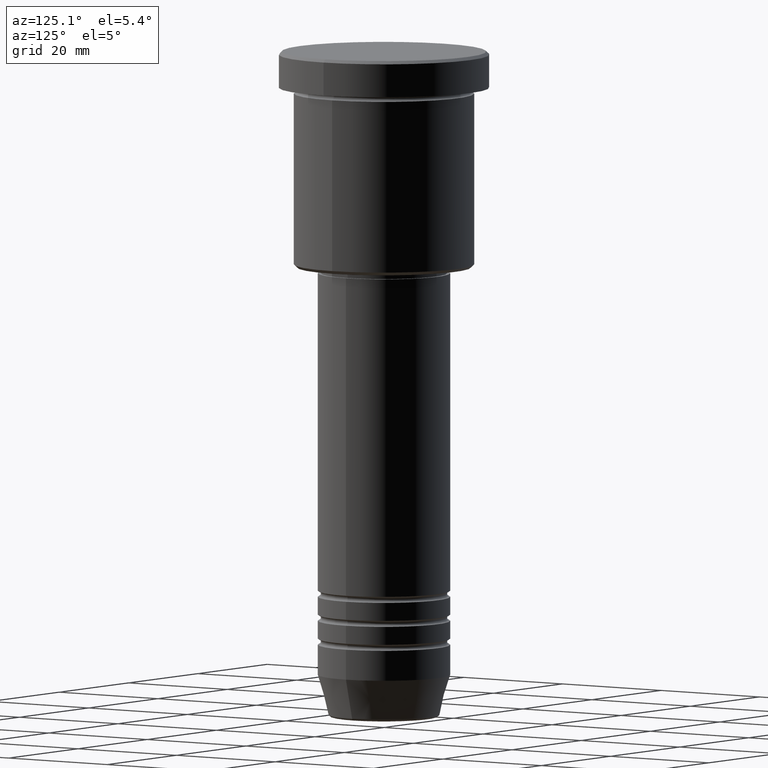
[diagram: clean part render]
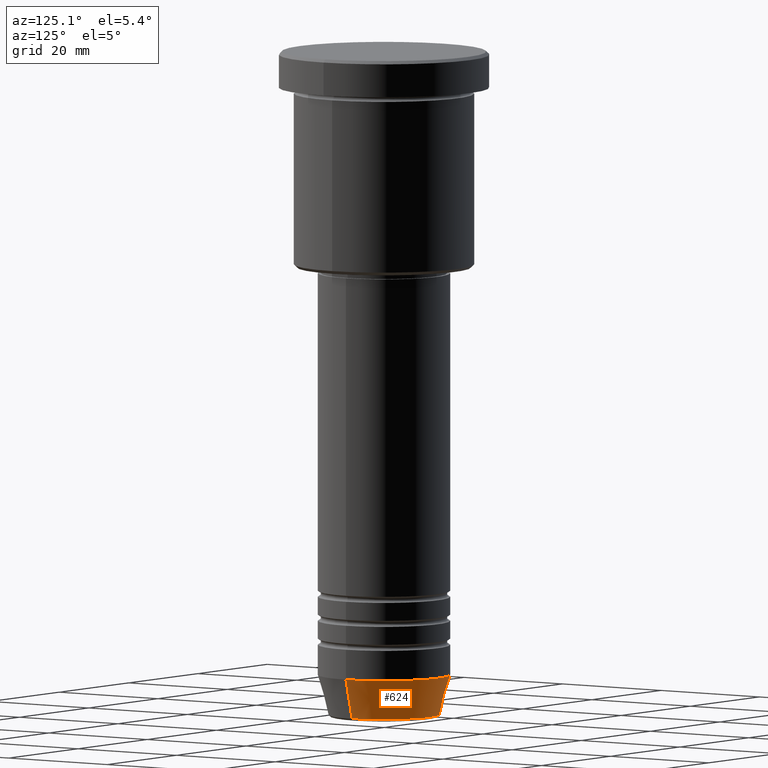
[diagram: same view with one face highlighted and labeled with its STEP entity id]
A machine part, auxiliary view. The second image highlights one B-rep face of the part: STEP entity #624.
In plain terms, the highlighted conical surface has half-angle 15 deg.
Its self-contained STEP definition (entity closure, byte-faithful):
#1 = VERTEX_POINT ( 'NONE', #257 ) ;
#43 = EDGE_CURVE ( 'NONE', #936, #205, #72, .T. ) ;
#72 = LINE ( 'NONE', #642, #761 ) ;
#77 = CARTESIAN_POINT ( 'NONE',  ( 11.00000000000000000, 0.000000000000000000, -104.0000000000000000 ) ) ;
#84 = ORIENTED_EDGE ( 'NONE', *, *, #795, .T. ) ;
#95 = DIRECTION ( 'NONE',  ( 1.000000000000000000, 0.000000000000000000, 0.000000000000000000 ) ) ;
#103 = VECTOR ( 'NONE', #452, 1000.000000000000000 ) ;
#168 = LINE ( 'NONE', #1158, #103 ) ;
#186 = AXIS2_PLACEMENT_3D ( 'NONE', #625, #539, #715 ) ;
#205 = VERTEX_POINT ( 'NONE', #578 ) ;
#257 = CARTESIAN_POINT ( 'NONE',  ( 9.223655072137194821, 0.000000000000000000, -110.6294095225512422 ) ) ;
#314 = CARTESIAN_POINT ( 'NONE',  ( 0.000000000000000000, 0.000000000000000000, -104.0000000000000000 ) ) ;
#338 = EDGE_CURVE ( 'NONE', #1, #384, #168, .T. ) ;
#344 = AXIS2_PLACEMENT_3D ( 'NONE', #314, #595, #933 ) ;
#384 = VERTEX_POINT ( 'NONE', #77 ) ;
#416 = CIRCLE ( 'NONE', #344, 11.00000000000000000 ) ;
#452 = DIRECTION ( 'NONE',  ( 0.2588190451025213501, 0.000000000000000000, 0.9659258262890680902 ) ) ;
#539 = DIRECTION ( 'NONE',  ( -0.000000000000000000, -0.000000000000000000, 1.000000000000000000 ) ) ;
#553 = FACE_OUTER_BOUND ( 'NONE', #797, .T. ) ;
#578 = CARTESIAN_POINT ( 'NONE',  ( -11.00000000000000000, 1.347111479062088405E-15, -104.0000000000000000 ) ) ;
#595 = DIRECTION ( 'NONE',  ( -0.000000000000000000, -0.000000000000000000, 1.000000000000000000 ) ) ;
#624 = ADVANCED_FACE ( 'NONE', ( #553 ), #706, .T. ) ;
#625 = CARTESIAN_POINT ( 'NONE',  ( 0.000000000000000000, 0.000000000000000000, -110.6294095225512422 ) ) ;
#637 = CARTESIAN_POINT ( 'NONE',  ( -9.223655072137194821, 1.238341722557647399E-15, -110.6294095225512422 ) ) ;
#642 = CARTESIAN_POINT ( 'NONE',  ( -11.00000000000000000, 1.347111479062088405E-15, -104.0000000000000000 ) ) ;
#663 = EDGE_CURVE ( 'NONE', #384, #205, #416, .T. ) ;
#706 = CONICAL_SURFACE ( 'NONE', #926, 11.00000000000000000, 0.2617993877991500740 ) ;
#715 = DIRECTION ( 'NONE',  ( 1.000000000000000000, 0.000000000000000000, 0.000000000000000000 ) ) ;
#727 = CIRCLE ( 'NONE', #186, 9.223655072137194821 ) ;
#735 = CARTESIAN_POINT ( 'NONE',  ( 0.000000000000000000, 0.000000000000000000, -104.0000000000000000 ) ) ;
#738 = DIRECTION ( 'NONE',  ( -0.2588190451025213501, 3.169619151431772337E-17, 0.9659258262890680902 ) ) ;
#741 = DIRECTION ( 'NONE',  ( -0.000000000000000000, -0.000000000000000000, 1.000000000000000000 ) ) ;
#761 = VECTOR ( 'NONE', #738, 1000.000000000000000 ) ;
#791 = ORIENTED_EDGE ( 'NONE', *, *, #663, .F. ) ;
#795 = EDGE_CURVE ( 'NONE', #1, #936, #727, .T. ) ;
#797 = EDGE_LOOP ( 'NONE', ( #84, #1136, #791, #817 ) ) ;
#817 = ORIENTED_EDGE ( 'NONE', *, *, #338, .F. ) ;
#926 = AXIS2_PLACEMENT_3D ( 'NONE', #735, #741, #95 ) ;
#933 = DIRECTION ( 'NONE',  ( 1.000000000000000000, 0.000000000000000000, 0.000000000000000000 ) ) ;
#936 = VERTEX_POINT ( 'NONE', #637 ) ;
#1136 = ORIENTED_EDGE ( 'NONE', *, *, #43, .T. ) ;
#1158 = CARTESIAN_POINT ( 'NONE',  ( 11.00000000000000000, 0.000000000000000000, -104.0000000000000000 ) ) ;